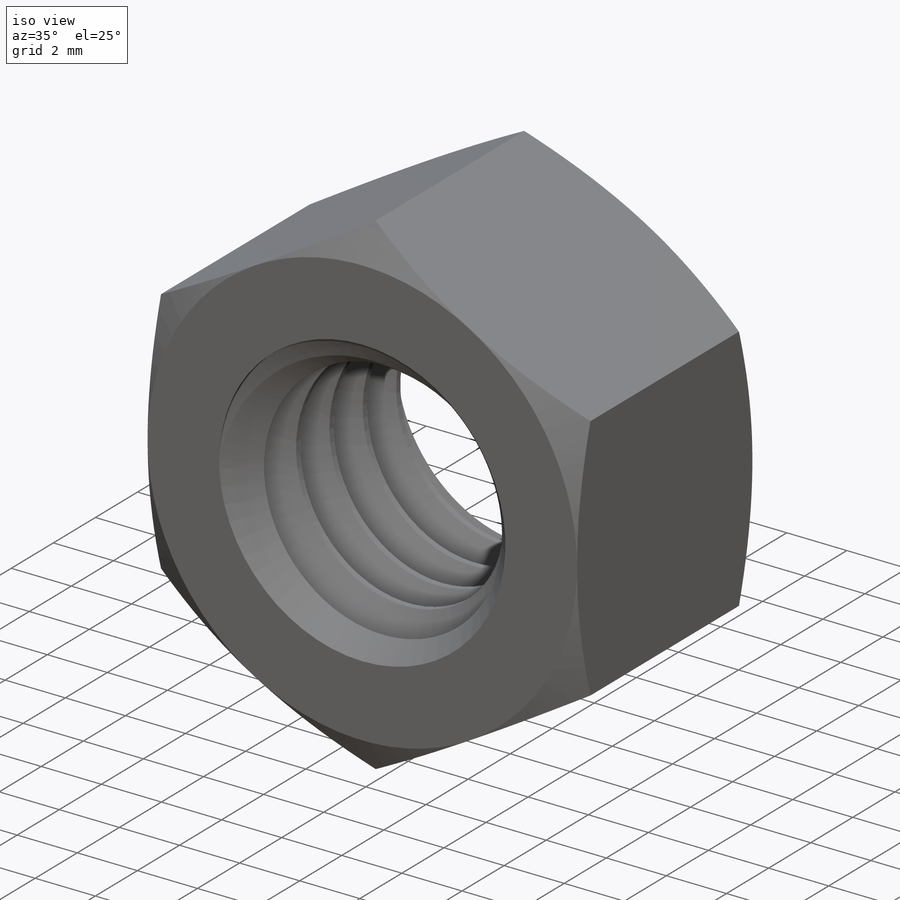
[diagram: iso view]
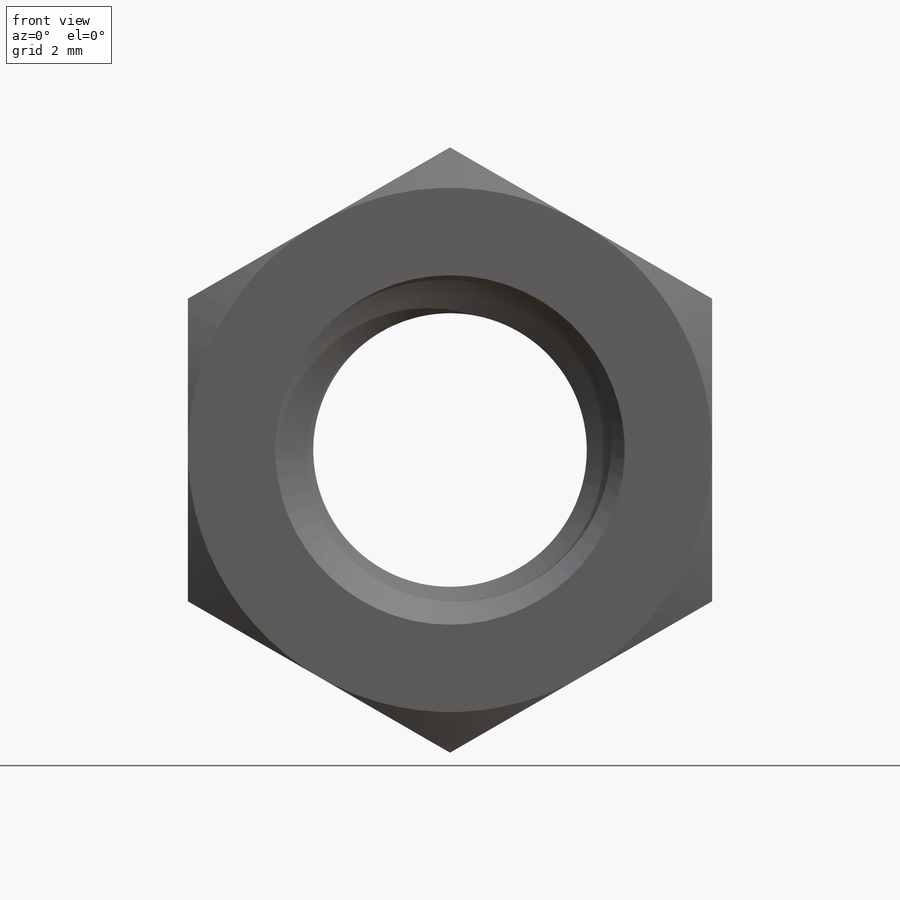
[diagram: front view]
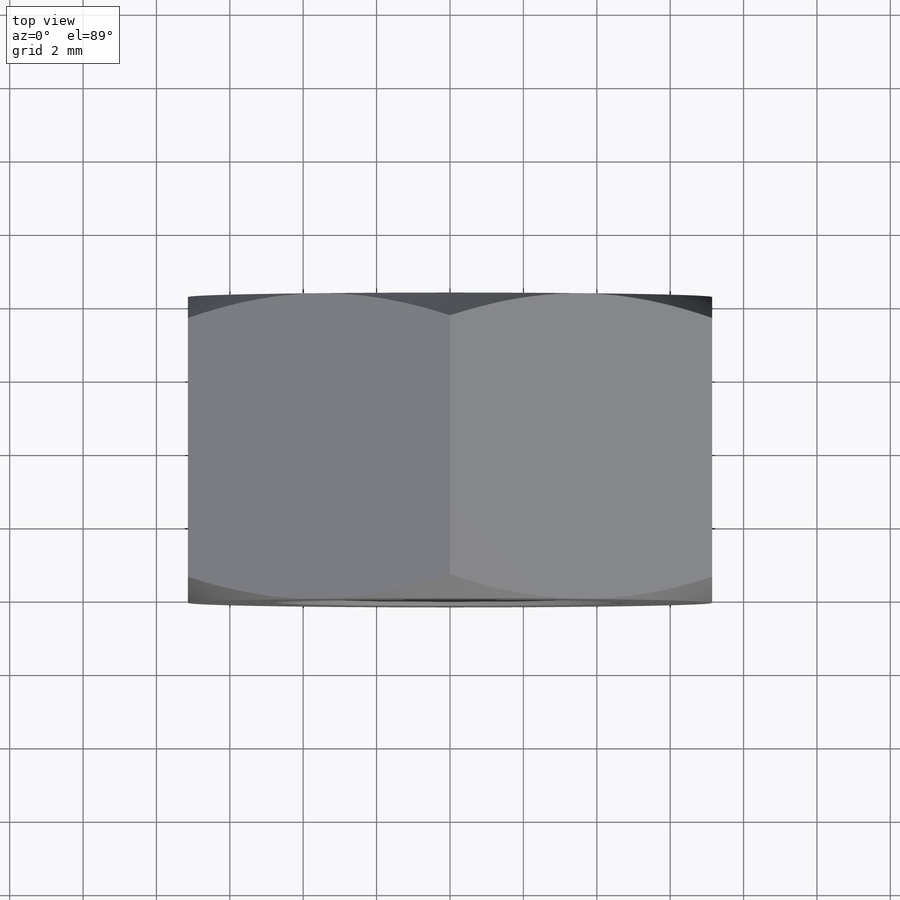
[diagram: top view]
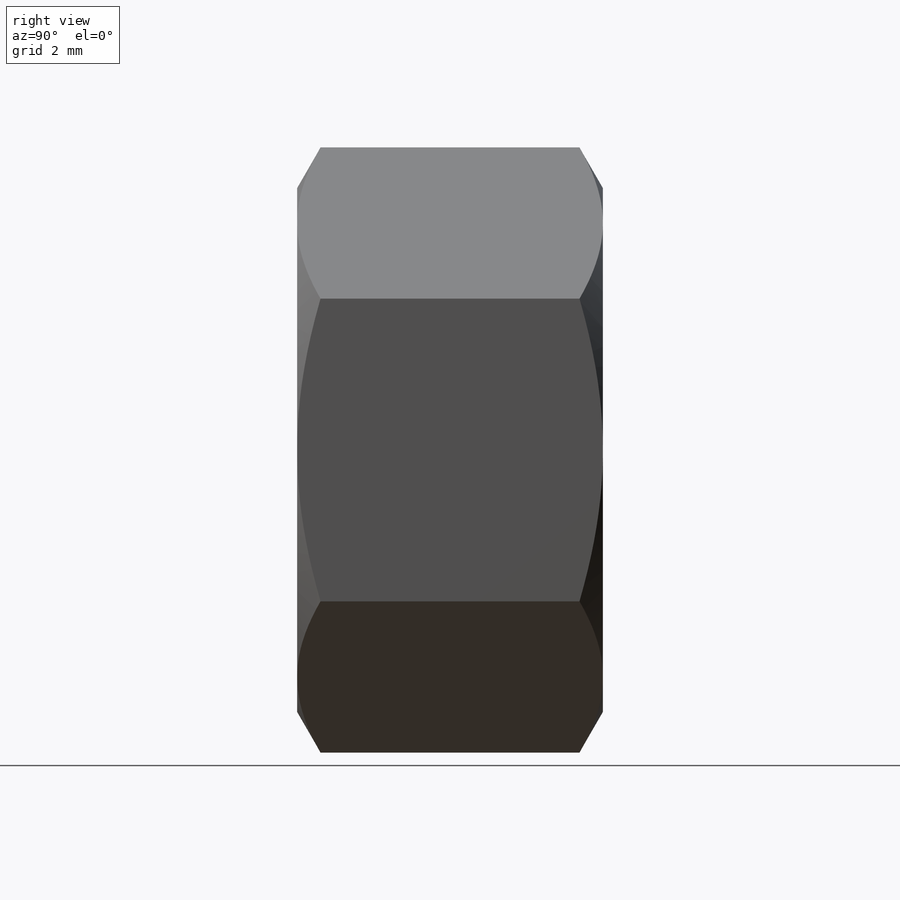
[diagram: right view]
SOLIDWORKS PART (.sldprt)
format: sldprt  version: not decoded by parser v0  size: 619,008 bytes
history: native  units: mm
features: sketch x6, material x1, extrude x1, helix x1, sweep x1, cut_revolve x1, cut_extrude x1, mirror x1 (+14 scaffold rows collapsed)
feature tree (27):
  scaffold x14  (default folders/planes/origin — collapsed)
  material  "AISI 304"
  sketch  "Sketch1"  dims[hex=14.2875mm dia=9.525mm]
  extrude  "Extrude1"  Depth=8.334375mm length=8.334375mm
  sketch  "Sketch4"
  helix  "Helix/Spiral3"  Pitch=10.00125mm
  sketch  "Sketch3"  dims[c1.D1=~5.640263mm c2.D1=60.0deg c2.D2=~0.79375mm c2.D3=~0.198437mm]
  sweep  "Sweep1"
  sketch  "Sketch6"  dims[c1.D1=~14.708106mm c2.D1=~61.849007deg c3.D1=~6.939237mm c4.D1=45.0deg c4.D2=~0.79375mm]
  cut_revolve  "Cut-Revolve1"  Angle=360deg
  sketch  "Sketch7"
  cut_extrude  "Extrude2"  Depth=25.4mm
  mirror  "Mirror1"
  sketch  "Sketch8"  dims[c1.D1=3.175mm c2.D1=45.0deg]
decode coverage: 8 of 12 modeling features carry decoded parameters
note: ~ marks probable driven/reference dimensions
note: suppression state not decoded; provenance and decode notes live in map.json
